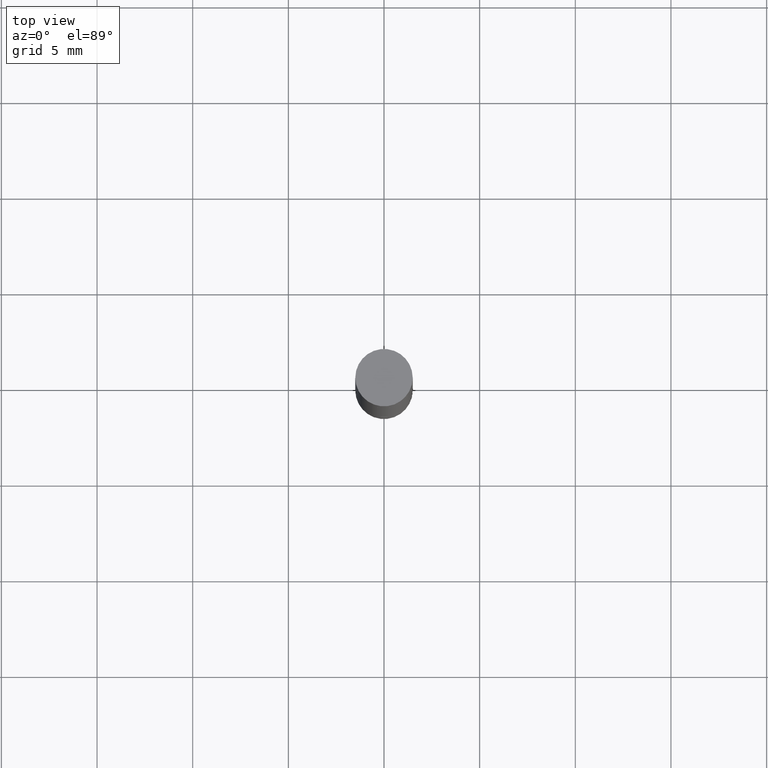
[diagram: clean part render]
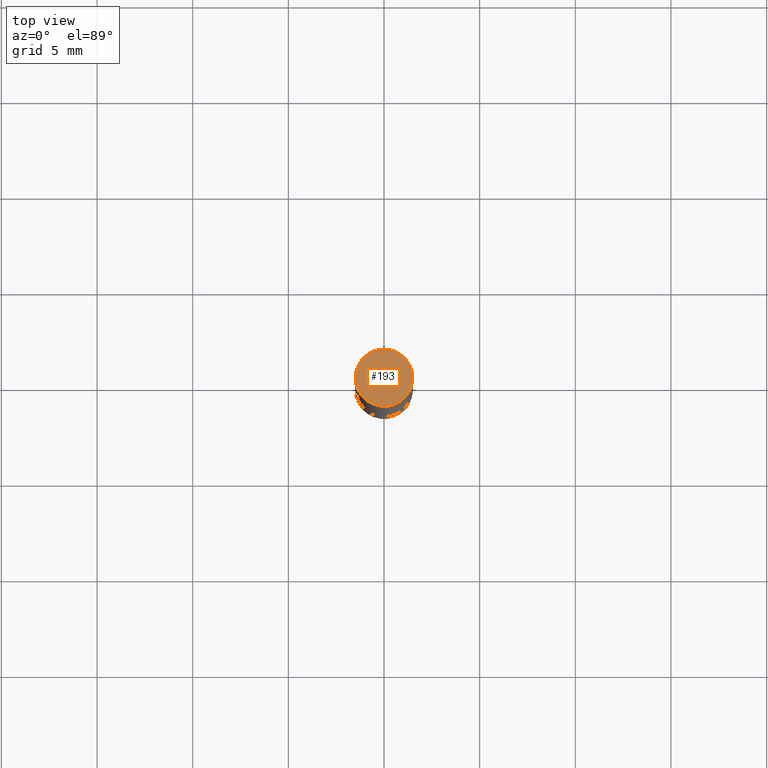
[diagram: same view with one face highlighted and labeled with its STEP entity id]
A machine part, top view. The second image highlights one B-rep face of the part: STEP entity #193.
In plain terms, the highlighted planar face has unit normal (0, 0, 1).
Its self-contained STEP definition (entity closure, byte-faithful):
#11 = VERTEX_POINT ( 'NONE', #38 ) ;
#23 = AXIS2_PLACEMENT_3D ( 'NONE', #174, #374, #210 ) ;
#38 = CARTESIAN_POINT ( 'NONE',  ( -0.05905000000000001914, -6.343893996178441579E-18, 2.731847993664278010E-16 ) ) ;
#56 = DIRECTION ( 'NONE',  ( 1.000000000000000000, -6.982962677686266711E-15, 0.000000000000000000 ) ) ;
#74 = CIRCLE ( 'NONE', #276, 0.05905000000000001914 ) ;
#109 = DIRECTION ( 'NONE',  ( 2.445468806185136597E-29, 3.492890411551752677E-15, 1.000000000000000000 ) ) ;
#122 = EDGE_LOOP ( 'NONE', ( #278, #386 ) ) ;
#144 = CARTESIAN_POINT ( 'NONE',  ( 0.05905000000000001914, -4.112898892776993753E-16, 2.731847993664263218E-16 ) ) ;
#151 = EDGE_CURVE ( 'NONE', #11, #291, #321, .T. ) ;
#157 = FACE_OUTER_BOUND ( 'NONE', #122, .T. ) ;
#174 = CARTESIAN_POINT ( 'NONE',  ( 4.123439461174106654E-16, 0.05905000000000001914, 0.000000000000000000 ) ) ;
#193 = ADVANCED_FACE ( 'NONE', ( #157 ), #636, .T. ) ;
#210 = DIRECTION ( 'NONE',  ( -1.000000000000000000, 6.982962677686265922E-15, -9.839502134516470631E-33 ) ) ;
#276 = AXIS2_PLACEMENT_3D ( 'NONE', #285, #109, #435 ) ;
#278 = ORIENTED_EDGE ( 'NONE', *, *, #400, .T. ) ;
#285 = CARTESIAN_POINT ( 'NONE',  ( 3.658665880933582389E-29, 1.054056839674803370E-18, 2.731847993664263218E-16 ) ) ;
#291 = VERTEX_POINT ( 'NONE', #144 ) ;
#321 = CIRCLE ( 'NONE', #662, 0.05905000000000001914 ) ;
#374 = DIRECTION ( 'NONE',  ( 2.438088387897959769E-29, 3.492890411551753071E-15, 1.000000000000000000 ) ) ;
#386 = ORIENTED_EDGE ( 'NONE', *, *, #151, .T. ) ;
#400 = EDGE_CURVE ( 'NONE', #291, #11, #74, .T. ) ;
#435 = DIRECTION ( 'NONE',  ( 1.000000000000000000, -6.982962677686266711E-15, 0.000000000000000000 ) ) ;
#482 = DIRECTION ( 'NONE',  ( 2.445468806185136597E-29, 3.492890411551752677E-15, 1.000000000000000000 ) ) ;
#583 = CARTESIAN_POINT ( 'NONE',  ( 3.658665880933582389E-29, 1.054056839674803370E-18, 2.731847993664263218E-16 ) ) ;
#636 = PLANE ( 'NONE',  #23 ) ;
#662 = AXIS2_PLACEMENT_3D ( 'NONE', #583, #482, #56 ) ;